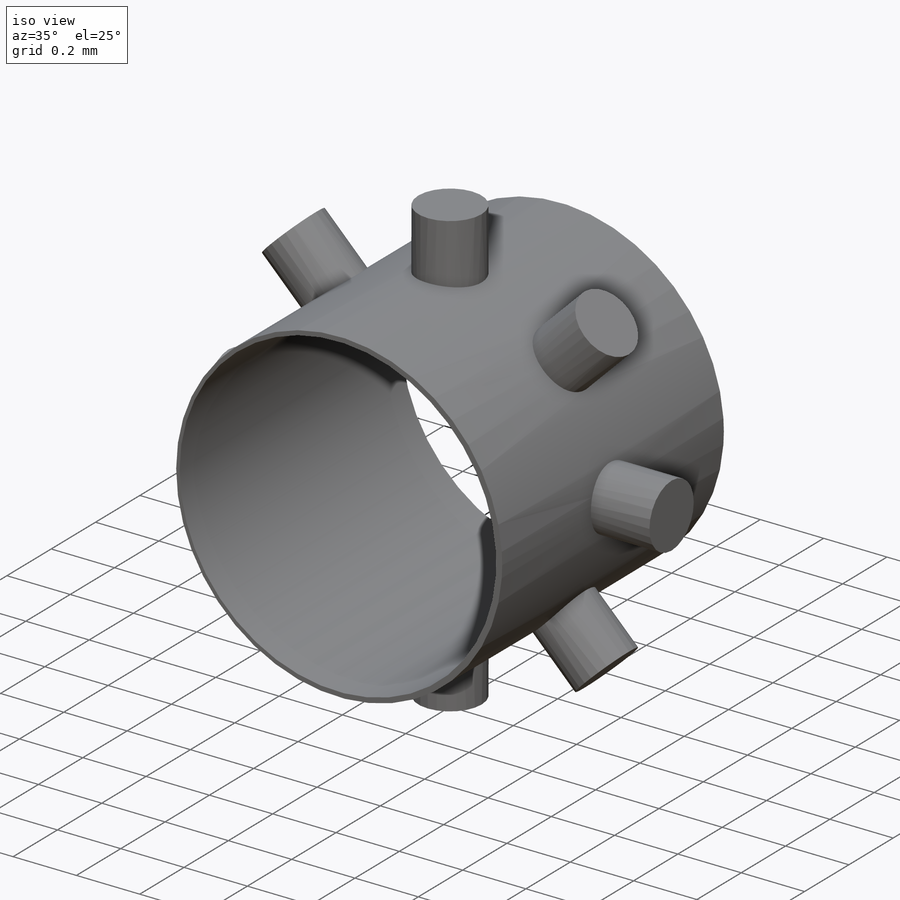
[diagram: iso view]
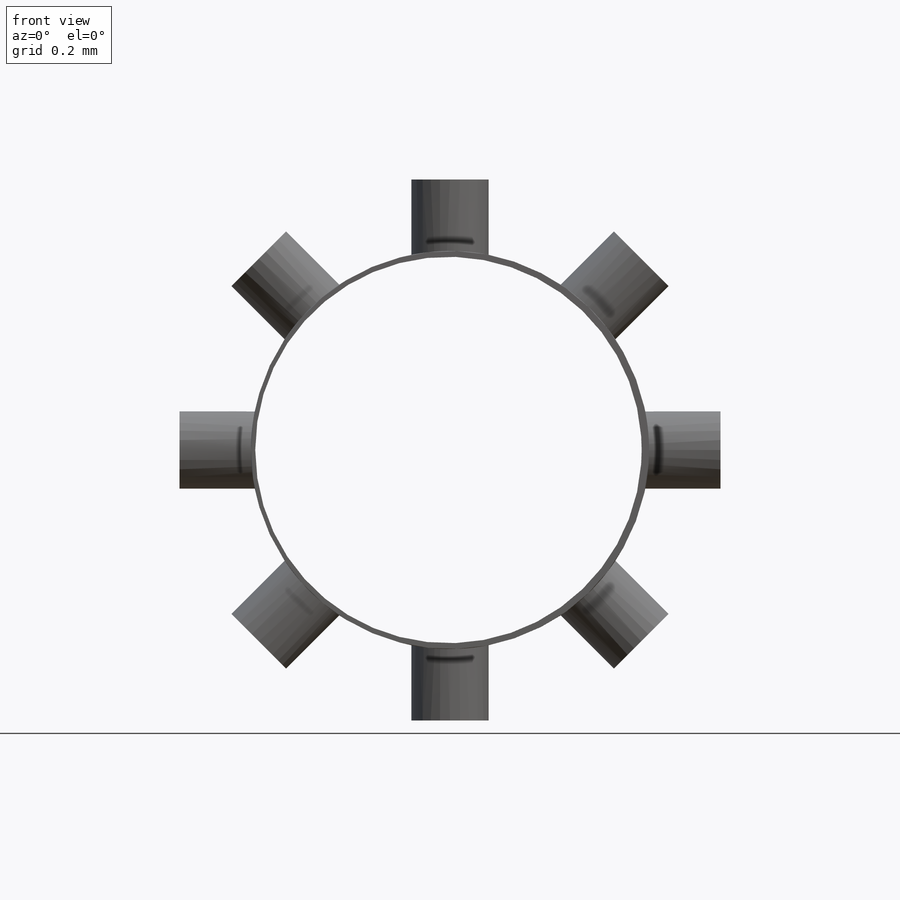
[diagram: front view]
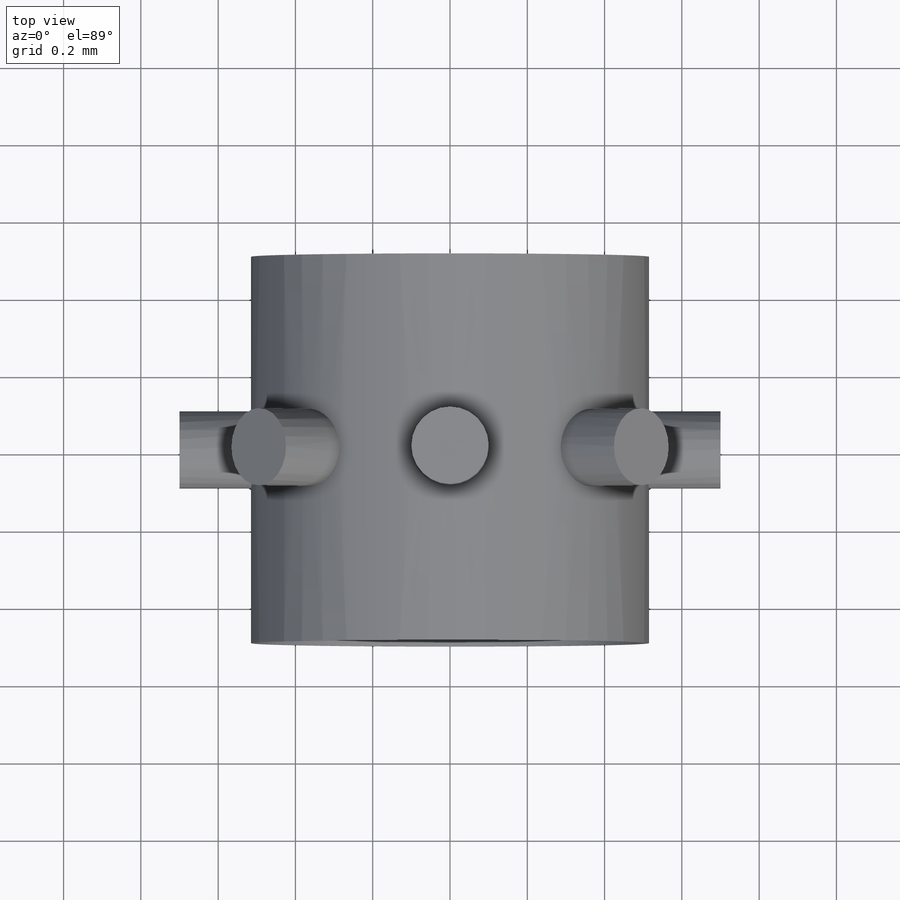
[diagram: top view]
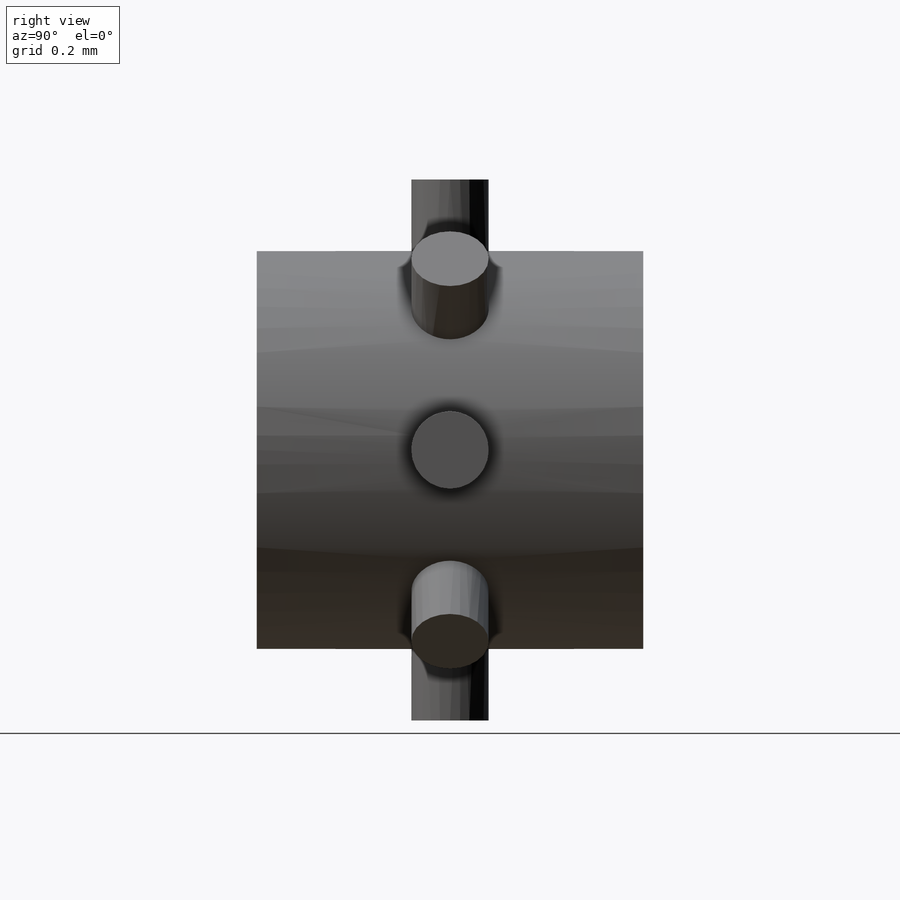
[diagram: right view]
SOLIDWORKS PART (.sldprt)
format: sldprt  version: not decoded by parser v0  size: 206,336 bytes
history: native  units: mm
features: sketch x2, extrude x2, material x1, plane x1, pattern_circular x1 (+16 scaffold rows collapsed)
feature tree (23):
  scaffold x16  (default folders/planes/origin — collapsed)
  material  "Material <not specified>"
  sketch  "Sketch1"  dims[D1=1.03mm D2=1.0mm D3=0.004mm]
  extrude  "Boss-Extrude1"  Depth=1mm
  plane  "Plane1"  Offset=0.7mm
  sketch  "Sketch2"  dims[D1=0.2mm D2=0.0mm D3=~0.777748mm]
  extrude  "Boss-Extrude2"  Depth=1mm
  pattern_circular  "CirPattern1"  Count=8 Angle=360deg
decode coverage: 5 of 5 modeling features carry decoded parameters
note: ~ marks probable driven/reference dimensions
note: suppression state not decoded; provenance and decode notes live in map.json
